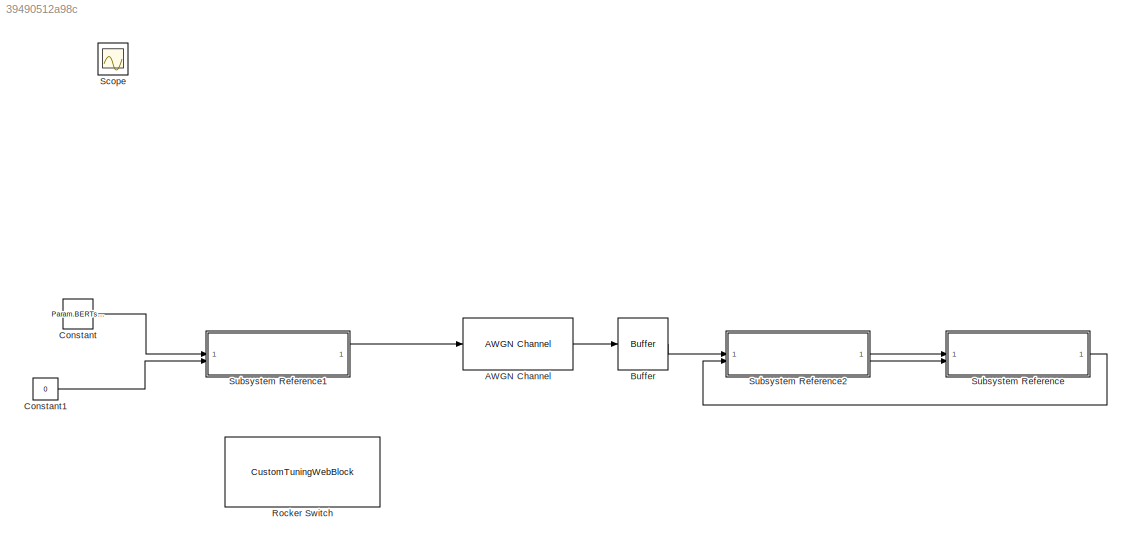
MODEL slx_39490512a98c
KIND model
CONFIG AbsTol = auto
CONFIG EnableMultiTasking = off
CONFIG FixedStep = 1/Param.FrameTime
CONFIG MaxStep = auto
CONFIG MinStep = auto
CONFIG RelTol = 1e-3
CONFIG SampleTimeConstraint = Unconstrained
CONFIG SolverName = FixedStepDiscrete
CONFIG StartTime = 0.0
CONFIG StopTime = inf
BLOCK [Reference] AWGN Channel  REF=commchan3/AWGN
Channel
  SourceBlock = commchan3/AWGN\nChannel
  SourceType = AWGN Channel
BLOCK [Buffer] Buffer
  N = Param.PlutoFrameLength
  OutputFrames = off
BLOCK [Constant] Constant
  SampleTime = -1
  Value = Param.BERTsequence
  VectorParams1D = off
BLOCK [Constant] Constant1
  Value = 0
BLOCK [CustomTuningWebBlock] Rocker Switch
  Configuration = {"components":[{"name":"CustomSwitchStateComponent","settings":{"position":[0,0,1,1],"states":[{"HitRegion":{"position":[0,0,0.5,1]},"Image":{"position":[0.13,0,1,0.75],"size":[1,0.75],"src":"data:image\/svg+xml;base64,PHN2ZyB4bWxucz0iaHR0cDovL3d3dy53My5vcmcvMjAwMC9zdmciIHhtbG5zOnhsaW5rPSJodHRwOi8vd3d3LnczLm9yZy8xOTk5L3hsaW5rIiB2aWV3Qm94PSIwIDAgNzUgMjQuOCI+PGRlZnM+PHN0eWxlPi5jbHMtMXtmaWxsOnVybCgjc...<+8958ch>
  LabelPosition = Hide
  ShowInitialText = on
BLOCK [Scope] Scope
  Floating = off
  IOType = viewer
  NumInputPorts = 1
  ScopeSpecificationString = Simulink.scopes.TimeScopeBlockCfg('CurrentConfiguration', extmgr.ConfigurationSet(extmgr.Configuration('Core','General UI',true),extmgr.Configuration('Core','Source UI',true),extmgr.Configuration('Sources','WiredSimulink',true),extmgr.Configuration('Visuals','Time Domain',true,'SerializedDisplays',{struct('MinYLimReal','-2.00000','MaxYLimReal','18.00000','YLabelReal','','MinYLimMag','0.00000','Max...<+1444ch>
BLOCK [SubSystem] Subsystem Reference
  ReferencedSubsystem = test_received_frames
BLOCK [SubSystem] Subsystem Reference1
  ReferencedSubsystem = bare_trans_QPSK
BLOCK [SubSystem] Subsystem Reference2
  ReferencedSubsystem = bare_recv_QPSK
LINE AWGN Channel:1 -> Buffer:1
LINE Buffer:1 -> Subsystem Reference2:1
LINE Constant1:1 -> Subsystem Reference1:2
LINE Constant:1 -> Subsystem Reference1:1
LINE Subsystem Reference1:1 -> AWGN Channel:1
LINE Subsystem Reference2:1 -> Subsystem Reference:1
LINE Subsystem Reference2:2 -> Subsystem Reference:2
LINE Subsystem Reference:1 -> Subsystem Reference2:2
